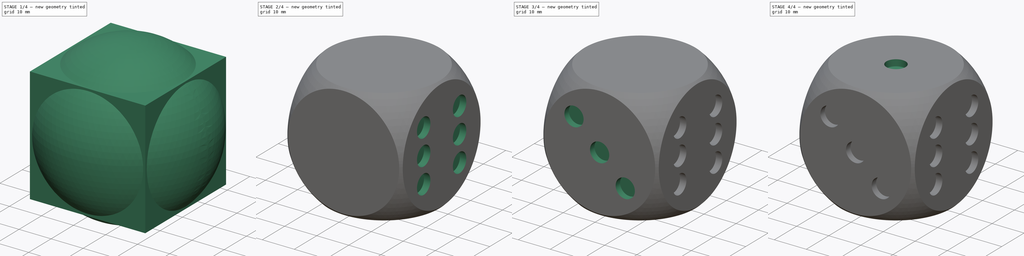
[diagram: build sequence overview — one tinted view per stage of 4, left to right]
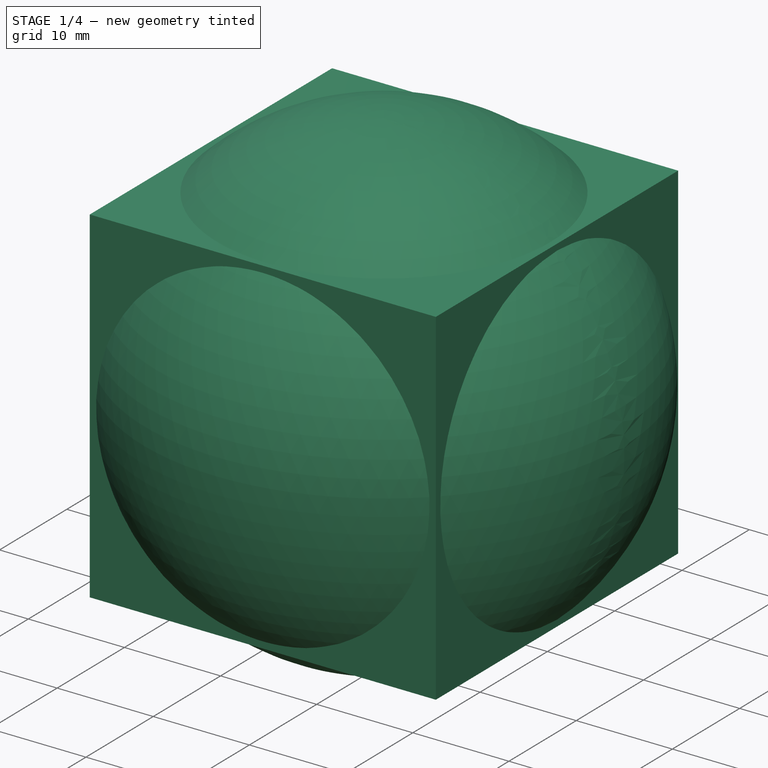
[diagram: stage 1 of 4 — iso view after this stage's code; geometry added in this stage tinted green]
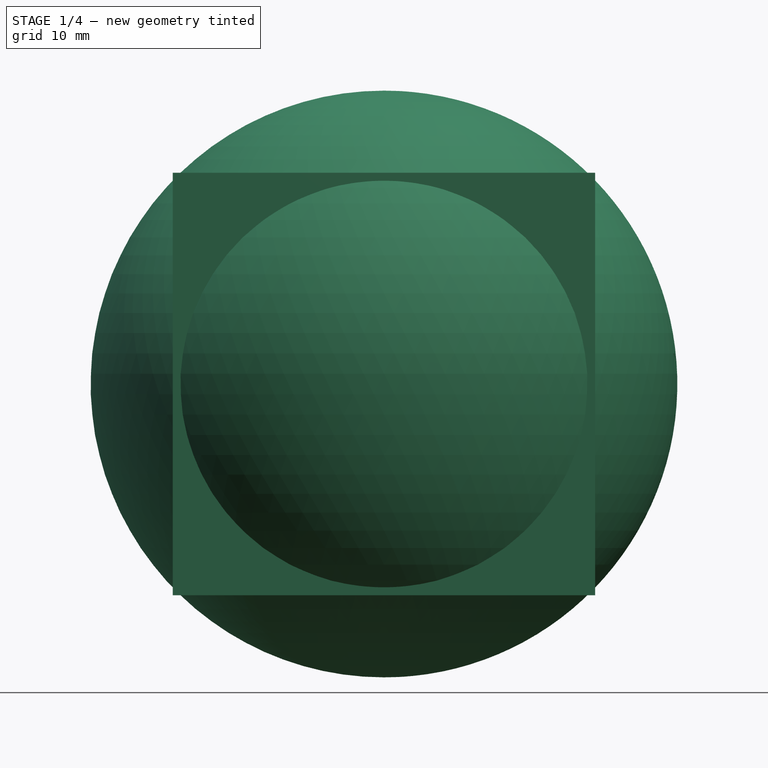
[diagram: stage 1 of 4 — front view after this stage's code; geometry added in this stage tinted green]
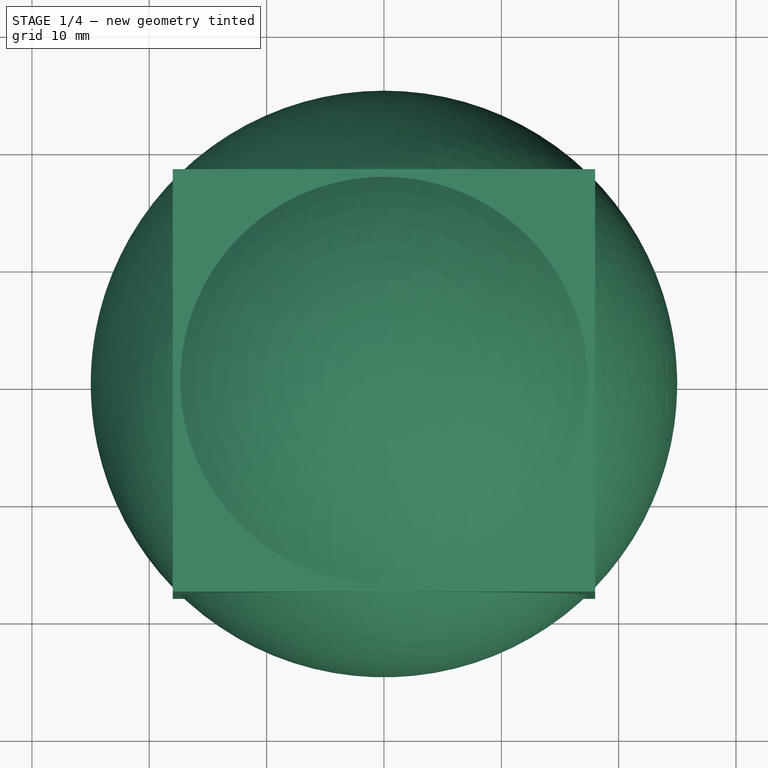
[diagram: stage 1 of 4 — top view after this stage's code; geometry added in this stage tinted green]
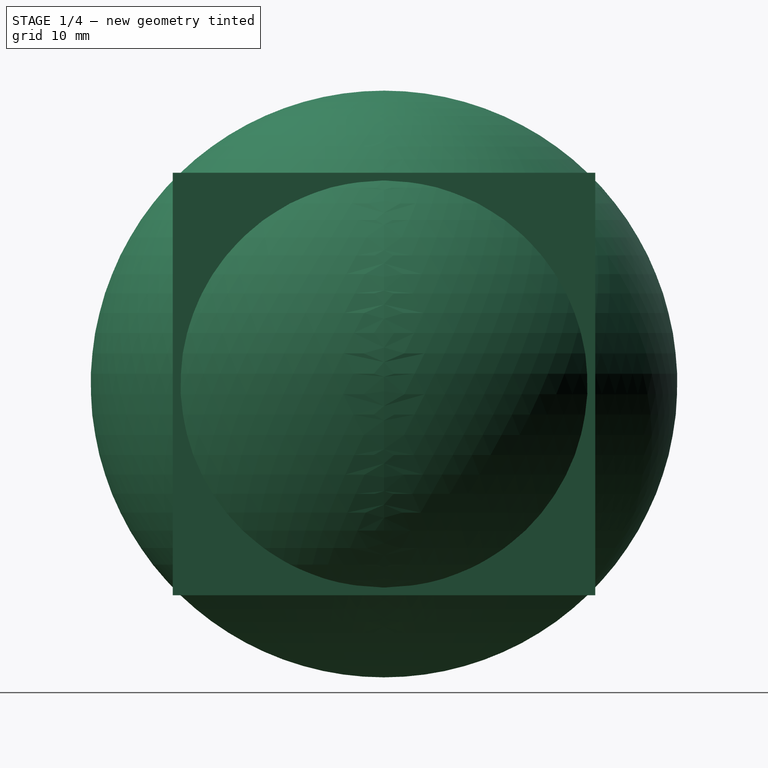
[diagram: stage 1 of 4 — right view after this stage's code; geometry added in this stage tinted green]
FCSTD DOCUMENT  (FreeCAD 0.16R6700 (Git))
Label: Aula03-Casino-Dice
License: All rights reserved
LicenseURL: http://en.wikipedia.org/wiki/All_rights_reserved
objects: Sketcher::SketchObject×6, PartDesign::Pocket×6, Part::Box×1, Part::Sphere×1, Part::MultiCommon×1
note: 21 computed .brp shape members not serialized (recipe doc carries the construction recipe); baked Part::Feature solids carry a one-line shape summary decoded from their .brp

FEATURE [Part::Box] Box  label="Cube"
  Height = 36
  Length = 36
  Placement = pos=(-18,-18,-18) rot=(0,0,1;0rad)
  Width = 36
FEATURE [Part::Sphere] Sphere
  Angle1 = -90
  Angle2 = 90
  Angle3 = 360
  Radius = 25
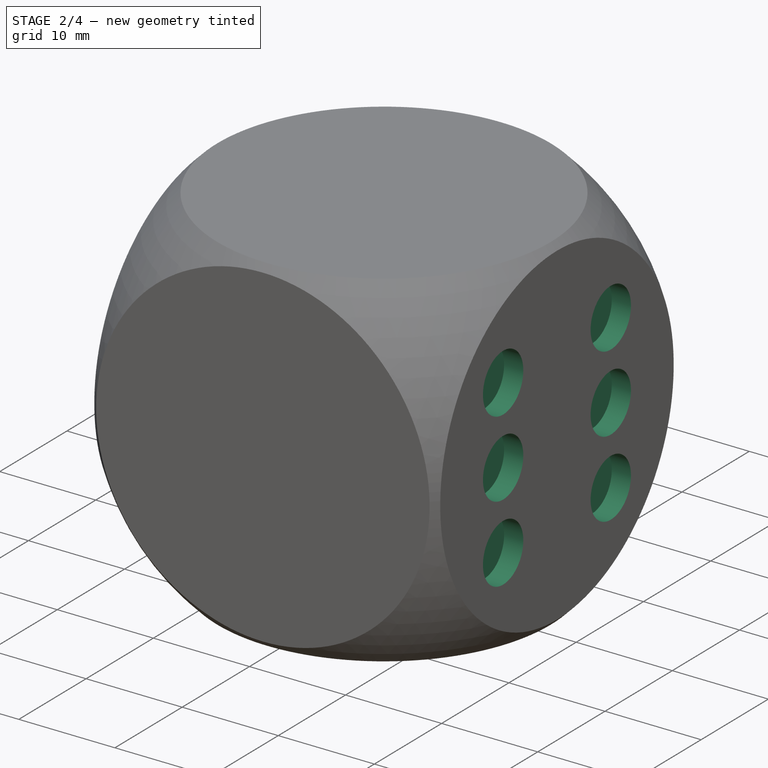
[diagram: stage 2 of 4 — iso view after this stage's code; geometry added in this stage tinted green]
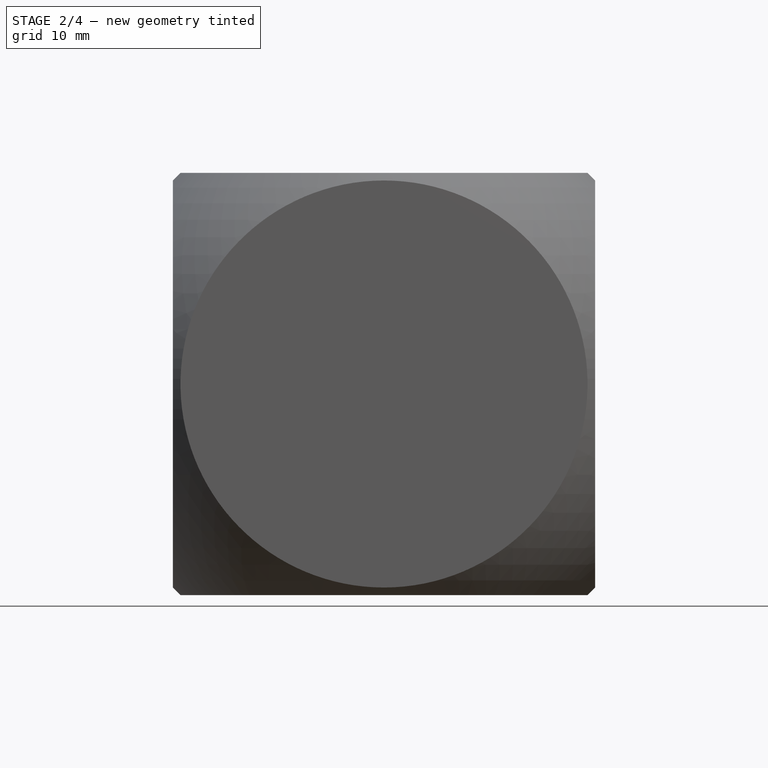
[diagram: stage 2 of 4 — front view after this stage's code; geometry added in this stage tinted green]
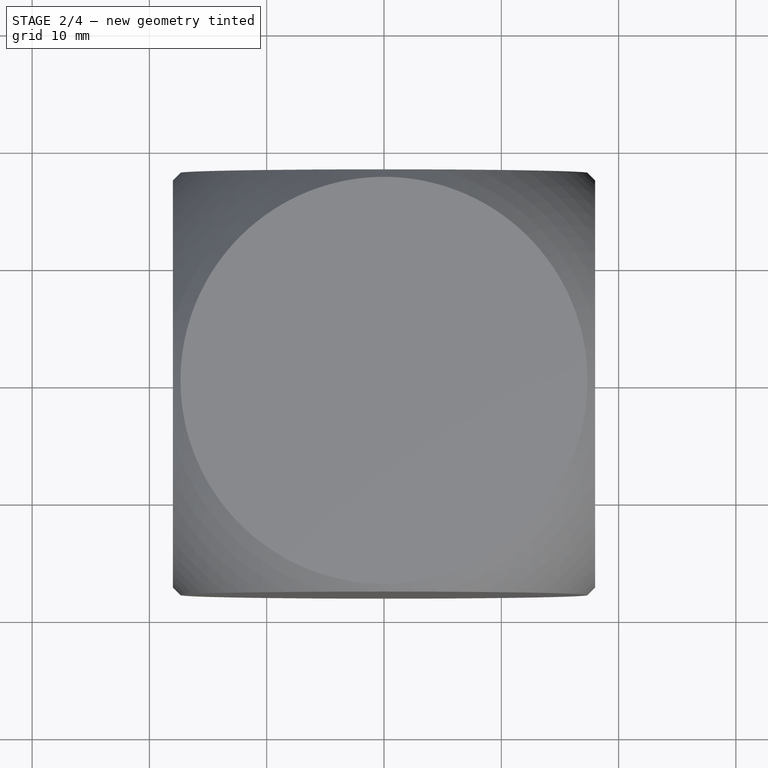
[diagram: stage 2 of 4 — top view after this stage's code; geometry added in this stage tinted green]
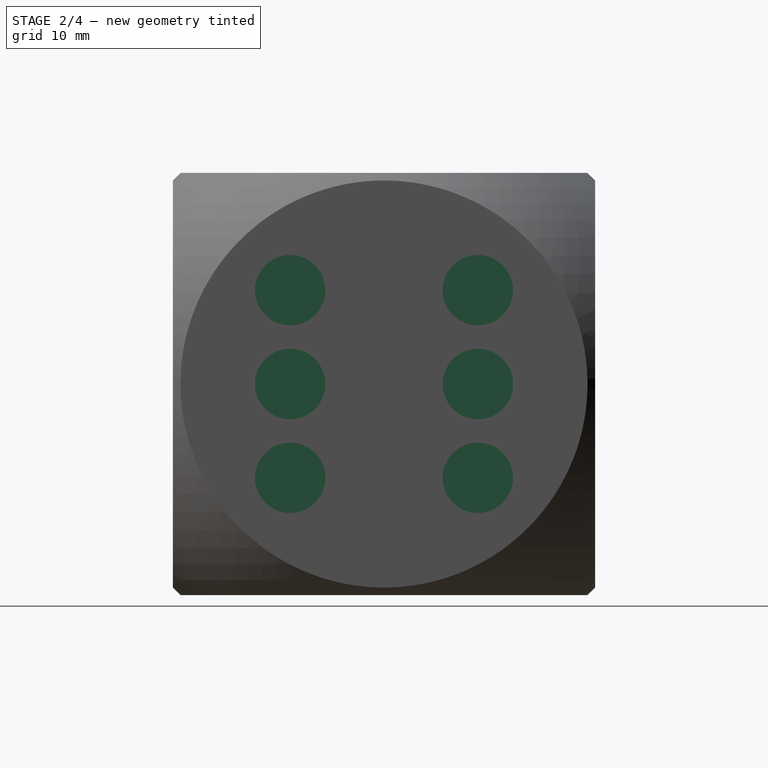
[diagram: stage 2 of 4 — right view after this stage's code; geometry added in this stage tinted green]
FEATURE [Part::MultiCommon] Common
  Shapes = -> [Box,Sphere]
FEATURE [Sketcher::SketchObject] Sketch
  Placement = pos=(18,0,0) rot=(0.57735,0.57735,0.57735;2.0944rad)
  Support = -> Common [Face4]
  sketch-geometry (10):
    g0: LineSegment [constr] StartX=-8 StartY=8 StartZ=0 EndX=8 EndY=8 EndZ=0
    g1: LineSegment [constr] StartX=8 StartY=8 StartZ=0 EndX=8 EndY=-8 EndZ=0
    g2: LineSegment [constr] StartX=8 StartY=-8 StartZ=0 EndX=-8 EndY=-8 EndZ=0
    g3: LineSegment [constr] StartX=-8 StartY=-8 StartZ=0 EndX=-8 EndY=8 EndZ=0
    g4: Circle CenterX=-8 CenterY=8 CenterZ=0 NormalX=0 NormalY=0 NormalZ=1 Radius=3
    g5: Circle CenterX=-8 CenterY=-8 CenterZ=0 NormalX=0 NormalY=0 NormalZ=1 Radius=3
    g6: Circle CenterX=8 CenterY=8 CenterZ=0 NormalX=0 NormalY=0 NormalZ=1 Radius=3
    g7: Circle CenterX=8 CenterY=-8 CenterZ=0 NormalX=0 NormalY=0 NormalZ=1 Radius=3
    g8: Circle CenterX=-8 CenterY=0 CenterZ=0 NormalX=0 NormalY=0 NormalZ=1 Radius=3
    g9: Circle CenterX=8 CenterY=0 CenterZ=0 NormalX=0 NormalY=0 NormalZ=1 Radius=3
  constraints (26):
    c: Coincident(g0,g1)
    c: Coincident(g1,g2)
    c: Coincident(g2,g3)
    c: Coincident(g3,g0)
    c: Horizontal(g0)
    c: Horizontal(g2)
    c: Vertical(g1)
    c: Vertical(g3)
    c: Symmetric(g0,g2,g-1)
    c: Symmetric(g0,g0,g-2)
    c: Equal(g0,g3)
    c: Equal(g3,g1)
    c: Equal(g1,g2)
    c: DistanceY(g3,g3) = 16
    c: Coincident(g4,g0)
    c: Coincident(g5,g2)
    c: Coincident(g6,g0)
    c: Coincident(g7,g1)
    c: Symmetric(g3,g3,g8)
    c: Symmetric(g1,g1,g9)
    c: Radius(g4) = 3
    c: Equal(g4,g8)
    c: Equal(g4,g5)
    c: Equal(g4,g7)
    c: Equal(g4,g9)
    c: Equal(g4,g6)
FEATURE [PartDesign::Pocket] Pocket  label="6 Furos"
  Length = 2
  Sketch = -> Sketch
  Type = 0
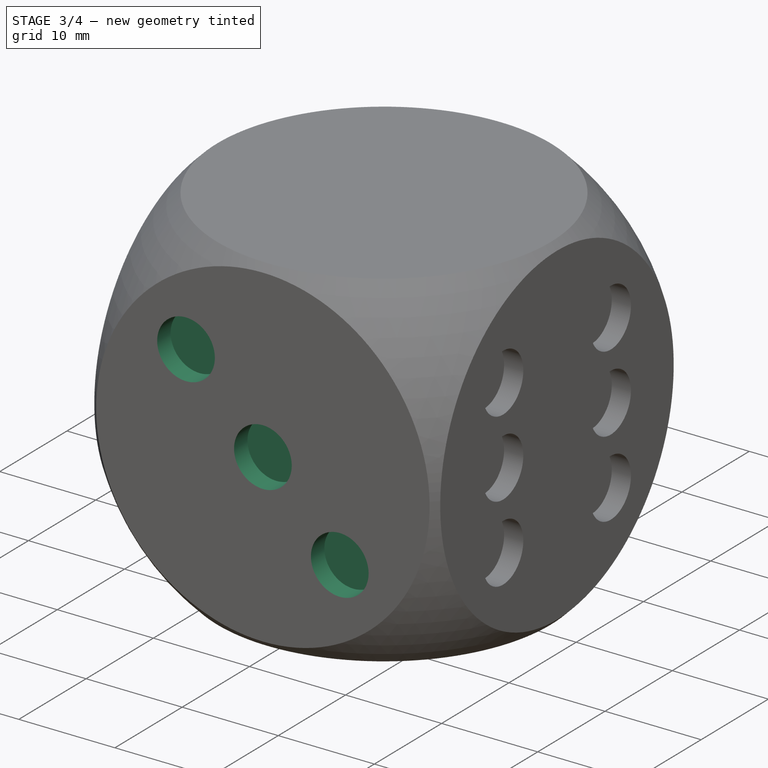
[diagram: stage 3 of 4 — iso view after this stage's code; geometry added in this stage tinted green]
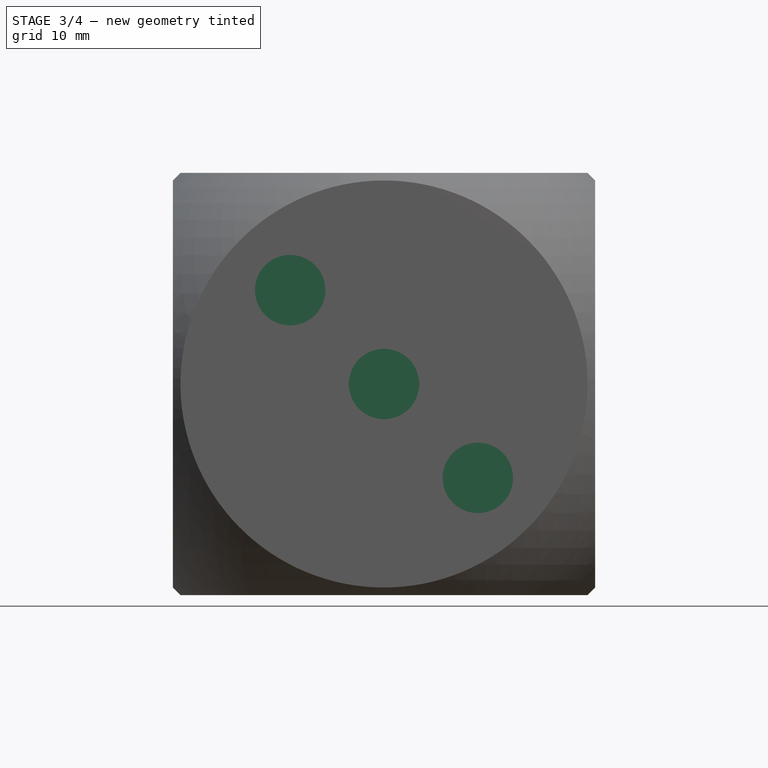
[diagram: stage 3 of 4 — front view after this stage's code; geometry added in this stage tinted green]
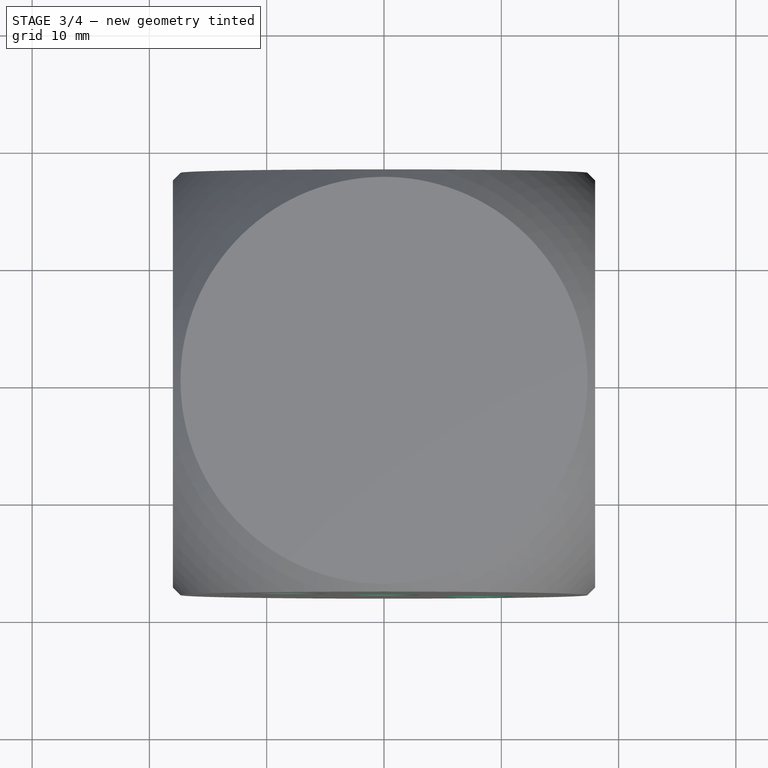
[diagram: stage 3 of 4 — top view after this stage's code; geometry added in this stage tinted green]
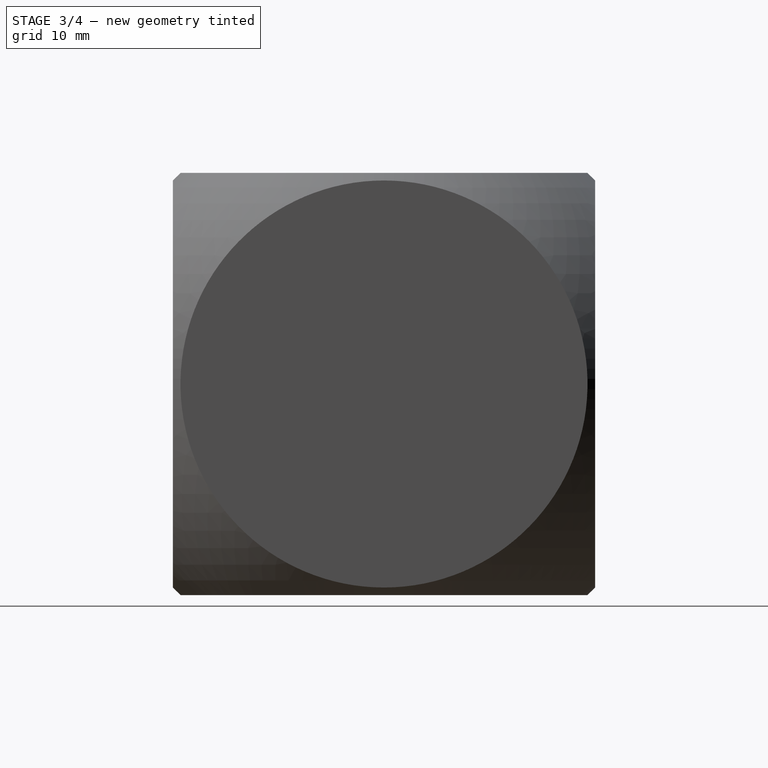
[diagram: stage 3 of 4 — right view after this stage's code; geometry added in this stage tinted green]
FEATURE [Sketcher::SketchObject] Sketch001
  Placement = pos=(0,18,0) rot=(0,0.707107,0.707107;3.14159rad)
  Support = -> Pocket [Face6]
  sketch-geometry (9):
    g0: LineSegment [constr] StartX=-8 StartY=8 StartZ=0 EndX=8 EndY=8 EndZ=0
    g1: LineSegment [constr] StartX=8 StartY=8 StartZ=0 EndX=8 EndY=-8 EndZ=0
    g2: LineSegment [constr] StartX=8 StartY=-8 StartZ=0 EndX=-8 EndY=-8 EndZ=0
    g3: LineSegment [constr] StartX=-8 StartY=-8 StartZ=0 EndX=-8 EndY=8 EndZ=0
    g4: Circle CenterX=8 CenterY=8 CenterZ=0 NormalX=0 NormalY=0 NormalZ=1 Radius=3
    g5: Circle CenterX=-8 CenterY=8 CenterZ=0 NormalX=0 NormalY=0 NormalZ=1 Radius=3
    g6: Circle CenterX=-8 CenterY=-8 CenterZ=0 NormalX=0 NormalY=0 NormalZ=1 Radius=3
    g7: Circle CenterX=8 CenterY=-8 CenterZ=0 NormalX=0 NormalY=0 NormalZ=1 Radius=3
    g8: Circle CenterX=0 CenterY=0 CenterZ=0 NormalX=0 NormalY=0 NormalZ=1 Radius=3
  constraints (22):
    c: Coincident(g0,g1)
    c: Coincident(g1,g2)
    c: Coincident(g2,g3)
    c: Coincident(g3,g0)
    c: Horizontal(g2)
    c: Vertical(g1)
    c: Symmetric(g0,g2,g-1)
    c: Symmetric(g0,g0,g-2)
    c: Equal(g3,g0)
    c: Equal(g0,g1)
    c: Equal(g1,g2)
    c: DistanceY(g3,g3) = 16
    c: Coincident(g4,g0)
    c: Coincident(g5,g0)
    c: Coincident(g1,g7)
    c: Coincident(g6,g2)
    c: Radius(g5) = 3
    c: Equal(g5,g6)
    c: Equal(g5,g7)
    c: Equal(g5,g4)
    c: PointOnObject(g8,g-2)
    c: Radius(g8) = 3
FEATURE [PartDesign::Pocket] Pocket001  label="5 Furos"
  Length = 2
  Sketch = -> Sketch001
  Type = 0
FEATURE [Sketcher::SketchObject] Sketch002
  Placement = pos=(-18,0,0) rot=(0.57735,-0.57735,-0.57735;2.0944rad)
  Support = -> Pocket001 [Face1]
  sketch-geometry (8):
    g0: LineSegment [constr] StartX=-8 StartY=8 StartZ=0 EndX=8 EndY=8 EndZ=0
    g1: LineSegment [constr] StartX=8 StartY=8 StartZ=0 EndX=8 EndY=-8 EndZ=0
    g2: LineSegment [constr] StartX=8 StartY=-8 StartZ=0 EndX=-8 EndY=-8 EndZ=0
    g3: LineSegment [constr] StartX=-8 StartY=-8 StartZ=0 EndX=-8 EndY=8 EndZ=0
    g4: Circle CenterX=-8 CenterY=8 CenterZ=0 NormalX=0 NormalY=0 NormalZ=1 Radius=3
    g5: Circle CenterX=8 CenterY=8 CenterZ=0 NormalX=0 NormalY=0 NormalZ=1 Radius=3
    g6: Circle CenterX=8 CenterY=-8 CenterZ=0 NormalX=0 NormalY=0 NormalZ=1 Radius=3
    g7: Circle CenterX=-8 CenterY=-8 CenterZ=0 NormalX=0 NormalY=0 NormalZ=1 Radius=3
  constraints (22):
    c: Coincident(g0,g1)
    c: Coincident(g1,g2)
    c: Coincident(g2,g3)
    c: Coincident(g3,g0)
    c: Horizontal(g0)
    c: Horizontal(g2)
    c: Vertical(g1)
    c: Vertical(g3)
    c: Symmetric(g0,g2,g-1)
    c: Symmetric(g0,g0,g-2)
    c: Equal(g3,g0)
    c: Equal(g0,g1)
    c: Equal(g1,g2)
    c: DistanceY(g3,g3) = 16
    c: Coincident(g4,g0)
    c: Coincident(g5,g0)
    c: Coincident(g6,g1)
    c: Coincident(g7,g2)
    c: Radius(g4) = 3
    c: Equal(g4,g7)
    c: Equal(g4,g6)
    c: Equal(g4,g5)
FEATURE [PartDesign::Pocket] Pocket002  label="4 Furos"
  Length = 2
  Sketch = -> Sketch002
  Type = 0
FEATURE [Sketcher::SketchObject] Sketch003
  Placement = pos=(0,-18,0) rot=(1,0,0;1.5708rad)
  Support = -> Pocket002 [Face11]
  sketch-geometry (7):
    g0: LineSegment [constr] StartX=-8 StartY=8 StartZ=0 EndX=8 EndY=8 EndZ=0
    g1: LineSegment [constr] StartX=8 StartY=8 StartZ=0 EndX=8 EndY=-8 EndZ=0
    g2: LineSegment [constr] StartX=8 StartY=-8 StartZ=0 EndX=-8 EndY=-8 EndZ=0
    g3: LineSegment [constr] StartX=-8 StartY=-8 StartZ=0 EndX=-8 EndY=8 EndZ=0
    g4: Circle CenterX=-8 CenterY=8 CenterZ=0 NormalX=0 NormalY=0 NormalZ=1 Radius=3
    g5: Circle CenterX=0 CenterY=0 CenterZ=0 NormalX=0 NormalY=0 NormalZ=1 Radius=3
    g6: Circle CenterX=8 CenterY=-8 CenterZ=0 NormalX=0 NormalY=0 NormalZ=1 Radius=3
  constraints (20):
    c: Coincident(g0,g1)
    c: Coincident(g1,g2)
    c: Coincident(g2,g3)
    c: Coincident(g3,g0)
    c: Horizontal(g0)
    c: Horizontal(g2)
    c: Vertical(g1)
    c: Vertical(g3)
    c: Symmetric(g0,g2,g-1)
    c: Symmetric(g0,g0,g-2)
    c: Equal(g2,g3)
    c: Equal(g3,g0)
    c: Equal(g0,g1)
    c: DistanceY(g3,g3) = 16
    c: Coincident(g4,g0)
    c: Coincident(g5,g-1)
    c: Coincident(g6,g1)
    c: Radius(g4) = 3
    c: Equal(g4,g5)
    c: Equal(g4,g6)
FEATURE [PartDesign::Pocket] Pocket003  label="3 Furos"
  Length = 2
  Sketch = -> Sketch003
  Type = 0
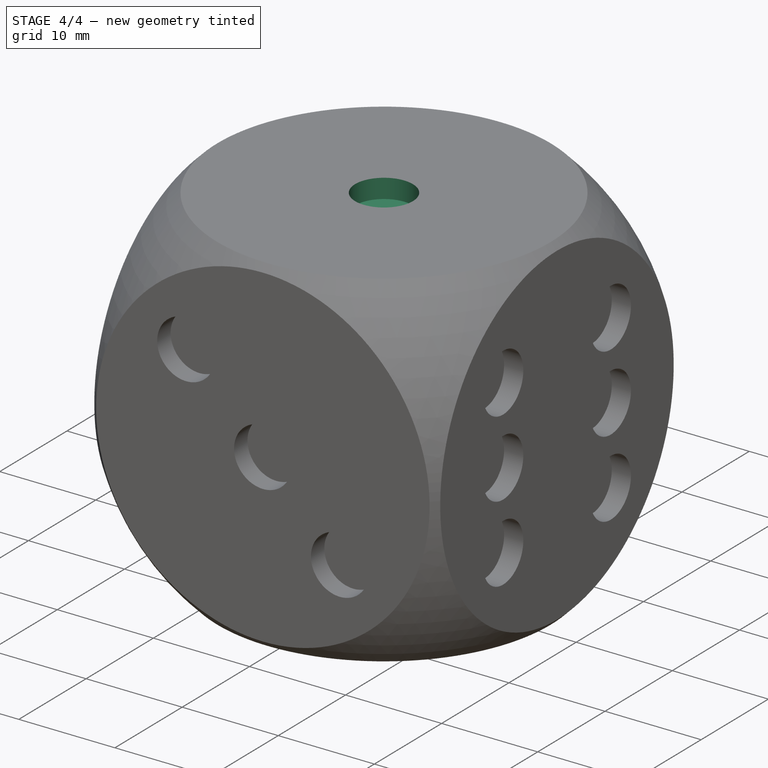
[diagram: stage 4 of 4 — iso view after this stage's code; geometry added in this stage tinted green]
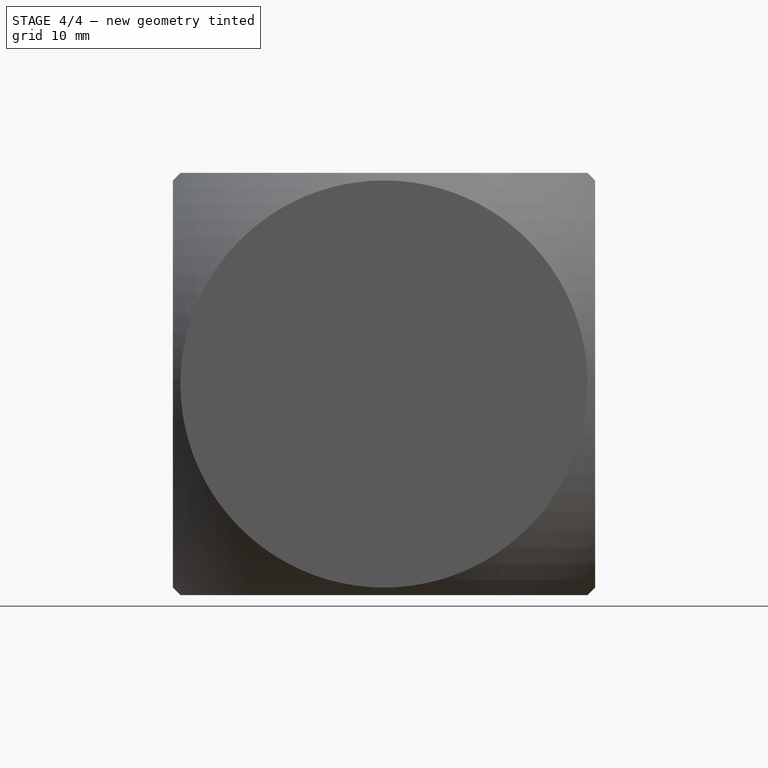
[diagram: stage 4 of 4 — front view after this stage's code; geometry added in this stage tinted green]
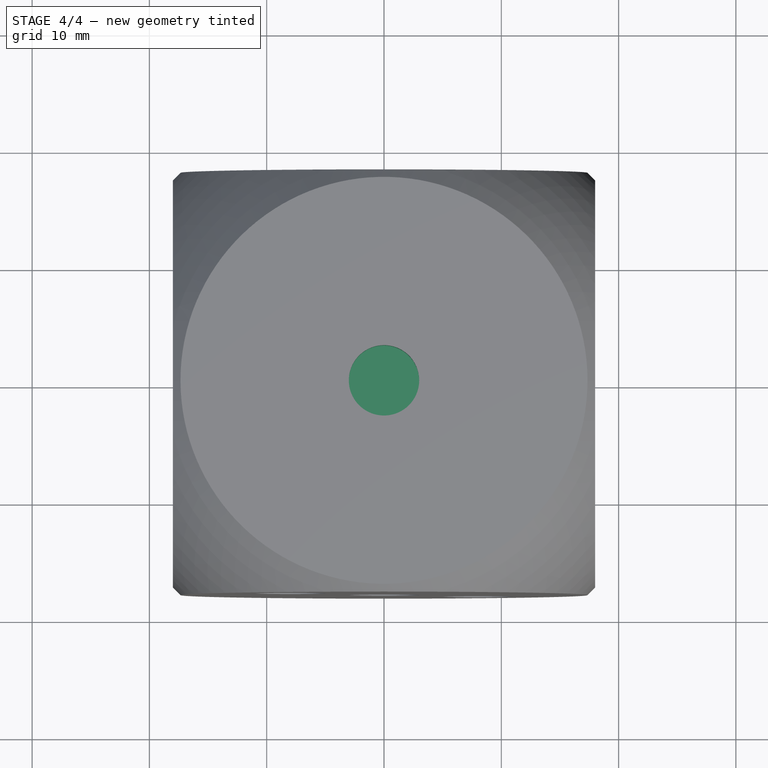
[diagram: stage 4 of 4 — top view after this stage's code; geometry added in this stage tinted green]
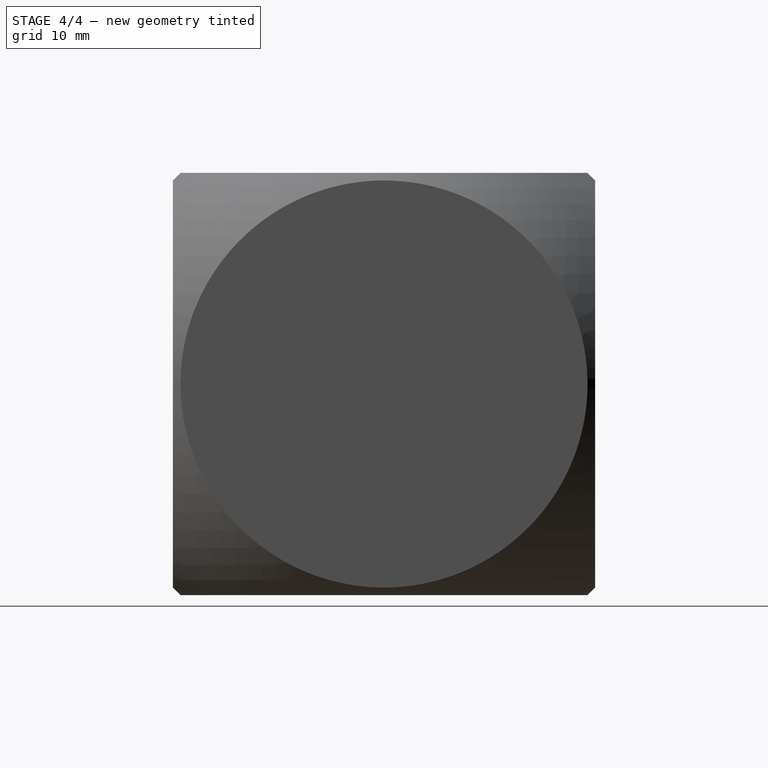
[diagram: stage 4 of 4 — right view after this stage's code; geometry added in this stage tinted green]
FEATURE [Sketcher::SketchObject] Sketch004
  Placement = pos=(0,0,-18) rot=(1,0,0;3.14159rad)
  Support = -> Pocket003 [Face9]
  sketch-geometry (6):
    g0: LineSegment [constr] StartX=-8 StartY=8 StartZ=0 EndX=8 EndY=8 EndZ=0
    g1: LineSegment [constr] StartX=8 StartY=8 StartZ=0 EndX=8 EndY=-8 EndZ=0
    g2: LineSegment [constr] StartX=8 StartY=-8 StartZ=0 EndX=-8 EndY=-8 EndZ=0
    g3: LineSegment [constr] StartX=-8 StartY=-8 StartZ=0 EndX=-8 EndY=8 EndZ=0
    g4: Circle CenterX=-8 CenterY=8 CenterZ=0 NormalX=0 NormalY=0 NormalZ=1 Radius=3
    g5: Circle CenterX=8 CenterY=-8 CenterZ=0 NormalX=0 NormalY=0 NormalZ=1 Radius=3
  constraints (18):
    c: Coincident(g0,g1)
    c: Coincident(g1,g2)
    c: Coincident(g2,g3)
    c: Coincident(g3,g0)
    c: Horizontal(g0)
    c: Horizontal(g2)
    c: Vertical(g1)
    c: Vertical(g3)
    c: Symmetric(g0,g2,g-1)
    c: Symmetric(g0,g0,g-2)
    c: Equal(g3,g0)
    c: Equal(g0,g1)
    c: Equal(g1,g2)
    c: DistanceY(g3,g3) = 16
    c: Coincident(g4,g0)
    c: Coincident(g5,g1)
    c: Radius(g4) = 3
    c: Equal(g4,g5)
FEATURE [PartDesign::Pocket] Pocket004  label="2 Furos"
  Length = 2
  Sketch = -> Sketch004
  Type = 0
FEATURE [Sketcher::SketchObject] Sketch005
  Placement = pos=(0,0,18) rot=(0,0,1;0rad)
  Support = -> Pocket004 [Face7]
  sketch-geometry (1):
    g0: Circle CenterX=0 CenterY=0 CenterZ=0 NormalX=0 NormalY=0 NormalZ=1 Radius=3
  constraints (2):
    c: Coincident(g0,g-1)
    c: Radius(g0) = 3
FEATURE [PartDesign::Pocket] Pocket005  label="1 Furo"
  Length = 2
  Sketch = -> Sketch005
  Type = 0
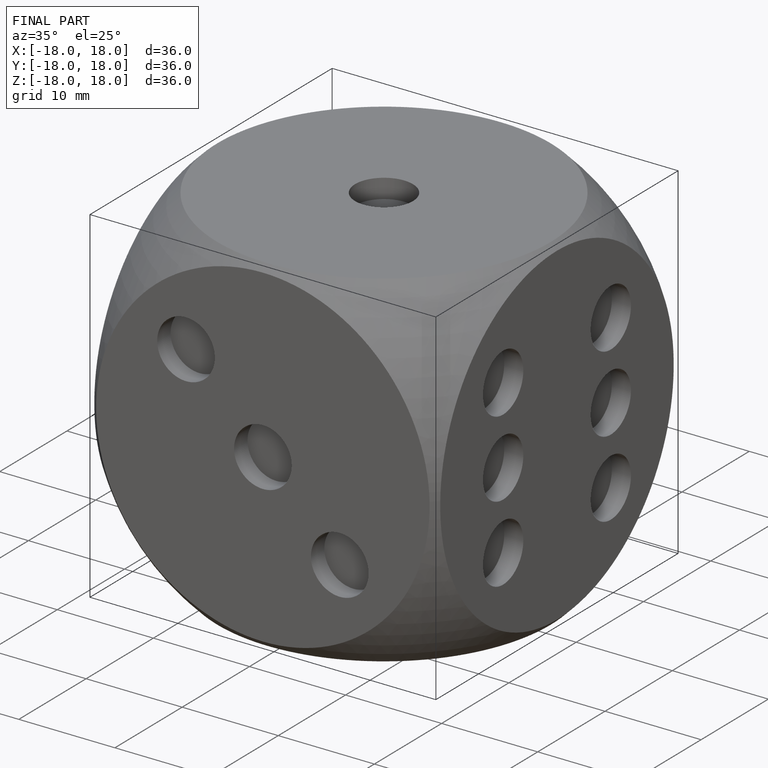
[diagram: finished part — iso view with bounding-box wireframe]
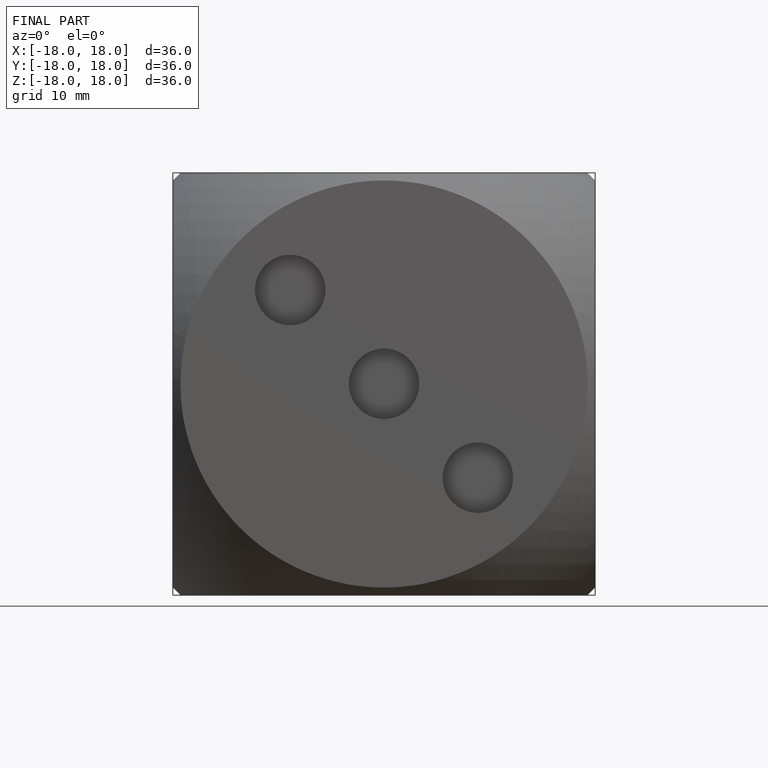
[diagram: finished part — front view with bounding-box wireframe]
